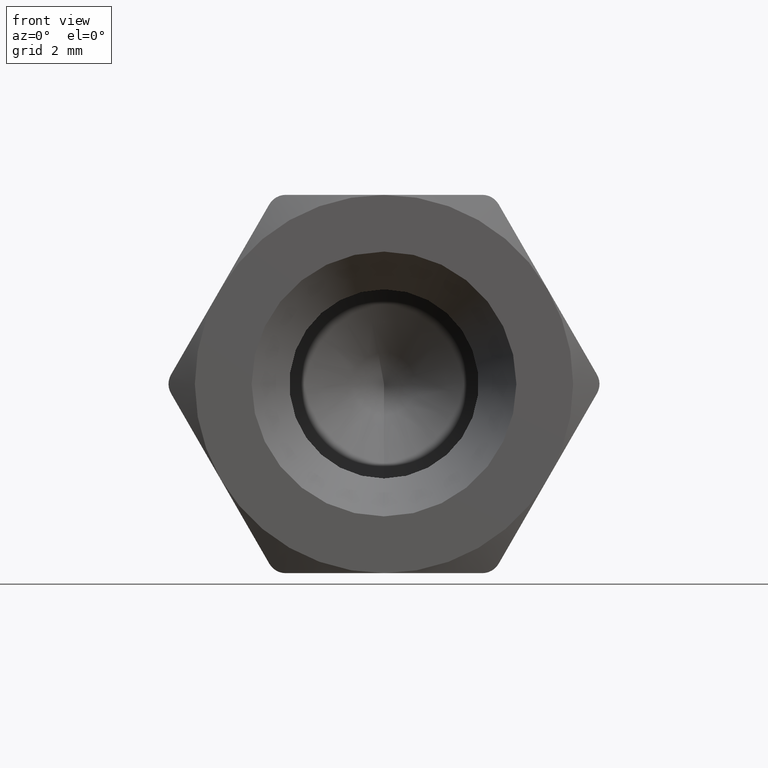
[diagram: clean part render]
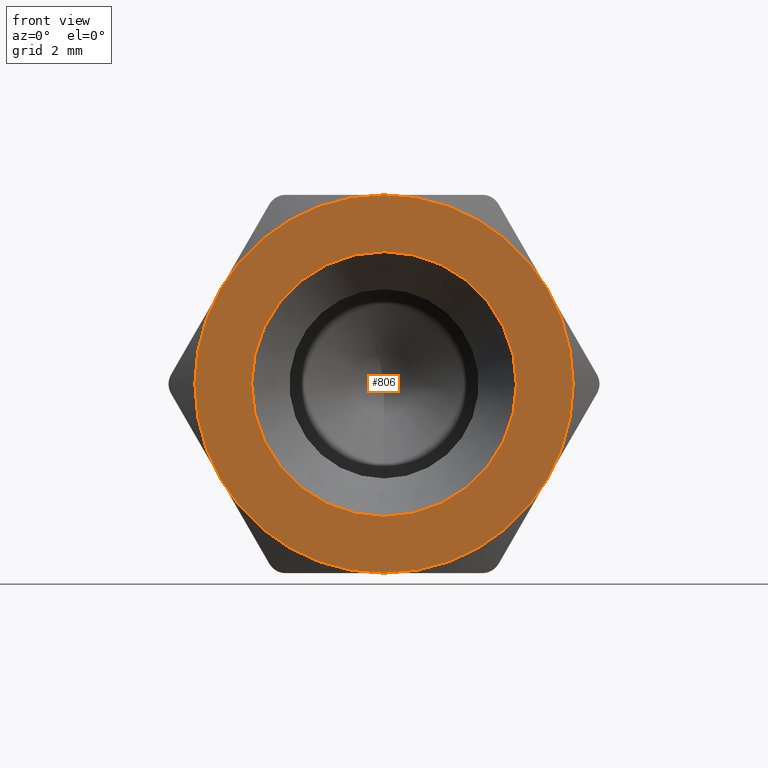
[diagram: same view with one face highlighted and labeled with its STEP entity id]
A machine part, front view. The second image highlights one B-rep face of the part: STEP entity #806.
In plain terms, the highlighted planar face has unit normal (0, 1, 0).
Its self-contained STEP definition (entity closure, byte-faithful):
#34 = ORIENTED_EDGE ( 'NONE', *, *, #979, .F. ) ;
#56 = ORIENTED_EDGE ( 'NONE', *, *, #211, .T. ) ;
#97 = CARTESIAN_POINT ( 'NONE',  ( 0.0000000000000000000, 0.0000000000000000000, 0.0000000000000000000 ) ) ;
#100 = EDGE_CURVE ( 'NONE', #544, #345, #1206, .T. ) ;
#103 = CARTESIAN_POINT ( 'NONE',  ( 0.0000000000000000000, 0.0000000000000000000, 0.0000000000000000000 ) ) ;
#152 = CIRCLE ( 'NONE', #462, 5.000000000000000900 ) ;
#200 = CIRCLE ( 'NONE', #993, 5.000000000000000900 ) ;
#211 = EDGE_CURVE ( 'NONE', #544, #928, #212, .T. ) ;
#212 = CIRCLE ( 'NONE', #297, 5.000000000000000900 ) ;
#215 = CARTESIAN_POINT ( 'NONE',  ( 4.330127018922192800, 0.0000000000000000000, -2.500000000000002700 ) ) ;
#271 = DIRECTION ( 'NONE',  ( 0.0000000000000000000, 1.000000000000000000, 0.0000000000000000000 ) ) ;
#272 = CARTESIAN_POINT ( 'NONE',  ( 0.0000000000000000000, 0.0000000000000000000, 0.0000000000000000000 ) ) ;
#276 = CARTESIAN_POINT ( 'NONE',  ( 4.330127018922195400, 0.0000000000000000000, 2.499999999999999600 ) ) ;
#297 = AXIS2_PLACEMENT_3D ( 'NONE', #272, #1269, #1265 ) ;
#308 = DIRECTION ( 'NONE',  ( 0.0000000000000000000, 0.0000000000000000000, 1.000000000000000000 ) ) ;
#316 = CARTESIAN_POINT ( 'NONE',  ( 0.0000000000000000000, 0.0000000000000000000, -5.000000000000000900 ) ) ;
#319 = DIRECTION ( 'NONE',  ( 0.0000000000000000000, 1.000000000000000000, 0.0000000000000000000 ) ) ;
#345 = VERTEX_POINT ( 'NONE', #371 ) ;
#367 = AXIS2_PLACEMENT_3D ( 'NONE', #97, #987, #572 ) ;
#371 = CARTESIAN_POINT ( 'NONE',  ( -4.330127018922195400, 0.0000000000000000000, -2.500000000000000000 ) ) ;
#392 = ORIENTED_EDGE ( 'NONE', *, *, #1106, .F. ) ;
#395 = DIRECTION ( 'NONE',  ( 0.0000000000000000000, 0.0000000000000000000, 1.000000000000000000 ) ) ;
#398 = FACE_OUTER_BOUND ( 'NONE', #1113, .T. ) ;
#420 = DIRECTION ( 'NONE',  ( 0.0000000000000000000, 1.000000000000000000, 0.0000000000000000000 ) ) ;
#424 = VERTEX_POINT ( 'NONE', #685 ) ;
#434 = AXIS2_PLACEMENT_3D ( 'NONE', #1128, #319, #1049 ) ;
#447 = VERTEX_POINT ( 'NONE', #585 ) ;
#450 = FACE_BOUND ( 'NONE', #1143, .T. ) ;
#458 = ORIENTED_EDGE ( 'NONE', *, *, #100, .F. ) ;
#462 = AXIS2_PLACEMENT_3D ( 'NONE', #103, #782, #395 ) ;
#475 = ORIENTED_EDGE ( 'NONE', *, *, #920, .F. ) ;
#530 = ORIENTED_EDGE ( 'NONE', *, *, #748, .F. ) ;
#540 = DIRECTION ( 'NONE',  ( 0.0000000000000000000, 0.0000000000000000000, 1.000000000000000000 ) ) ;
#544 = VERTEX_POINT ( 'NONE', #316 ) ;
#546 = DIRECTION ( 'NONE',  ( 0.0000000000000000000, 1.000000000000000000, 0.0000000000000000000 ) ) ;
#572 = DIRECTION ( 'NONE',  ( 0.0000000000000000000, 0.0000000000000000000, 1.000000000000000000 ) ) ;
#585 = CARTESIAN_POINT ( 'NONE',  ( 0.0000000000000000000, 0.0000000000000000000, 5.000000000000000900 ) ) ;
#600 = DIRECTION ( 'NONE',  ( 0.0000000000000000000, 0.0000000000000000000, 1.000000000000000000 ) ) ;
#603 = AXIS2_PLACEMENT_3D ( 'NONE', #809, #1193, #308 ) ;
#619 = EDGE_CURVE ( 'NONE', #1165, #1165, #973, .T. ) ;
#685 = CARTESIAN_POINT ( 'NONE',  ( -4.330127018922194500, 0.0000000000000000000, 2.500000000000000000 ) ) ;
#706 = CIRCLE ( 'NONE', #367, 5.000000000000000900 ) ;
#748 = EDGE_CURVE ( 'NONE', #447, #1023, #706, .T. ) ;
#782 = DIRECTION ( 'NONE',  ( 0.0000000000000000000, 1.000000000000000000, 0.0000000000000000000 ) ) ;
#797 = ORIENTED_EDGE ( 'NONE', *, *, #619, .T. ) ;
#806 = ADVANCED_FACE ( 'NONE', ( #450, #398 ), #1278, .F. ) ;
#809 = CARTESIAN_POINT ( 'NONE',  ( 0.0000000000000000000, 0.0000000000000000000, 0.0000000000000000000 ) ) ;
#864 = CARTESIAN_POINT ( 'NONE',  ( 0.0000000000000000000, 0.0000000000000000000, 0.0000000000000000000 ) ) ;
#897 = CIRCLE ( 'NONE', #434, 5.000000000000000900 ) ;
#920 = EDGE_CURVE ( 'NONE', #1023, #928, #897, .T. ) ;
#928 = VERTEX_POINT ( 'NONE', #215 ) ;
#948 = CARTESIAN_POINT ( 'NONE',  ( 0.0000000000000000000, 0.0000000000000000000, 0.0000000000000000000 ) ) ;
#967 = DIRECTION ( 'NONE',  ( 0.0000000000000000000, -0.0000000000000000000, 1.000000000000000000 ) ) ;
#971 = CARTESIAN_POINT ( 'NONE',  ( 0.0000000000000000000, 0.0000000000000000000, 3.500000000000004900 ) ) ;
#973 = CIRCLE ( 'NONE', #603, 3.500000000000004900 ) ;
#979 = EDGE_CURVE ( 'NONE', #424, #447, #152, .T. ) ;
#987 = DIRECTION ( 'NONE',  ( 0.0000000000000000000, 1.000000000000000000, 0.0000000000000000000 ) ) ;
#993 = AXIS2_PLACEMENT_3D ( 'NONE', #1220, #420, #600 ) ;
#1014 = AXIS2_PLACEMENT_3D ( 'NONE', #948, #546, #540 ) ;
#1023 = VERTEX_POINT ( 'NONE', #276 ) ;
#1049 = DIRECTION ( 'NONE',  ( 0.0000000000000000000, 0.0000000000000000000, 1.000000000000000000 ) ) ;
#1106 = EDGE_CURVE ( 'NONE', #345, #424, #200, .T. ) ;
#1113 = EDGE_LOOP ( 'NONE', ( #530, #34, #392, #458, #56, #475 ) ) ;
#1128 = CARTESIAN_POINT ( 'NONE',  ( 0.0000000000000000000, 0.0000000000000000000, 0.0000000000000000000 ) ) ;
#1143 = EDGE_LOOP ( 'NONE', ( #797 ) ) ;
#1165 = VERTEX_POINT ( 'NONE', #971 ) ;
#1170 = AXIS2_PLACEMENT_3D ( 'NONE', #864, #271, #967 ) ;
#1193 = DIRECTION ( 'NONE',  ( 0.0000000000000000000, 1.000000000000000000, 0.0000000000000000000 ) ) ;
#1206 = CIRCLE ( 'NONE', #1014, 5.000000000000000900 ) ;
#1220 = CARTESIAN_POINT ( 'NONE',  ( 0.0000000000000000000, 0.0000000000000000000, 0.0000000000000000000 ) ) ;
#1265 = DIRECTION ( 'NONE',  ( 0.0000000000000000000, 0.0000000000000000000, -1.000000000000000000 ) ) ;
#1269 = DIRECTION ( 'NONE',  ( 0.0000000000000000000, -1.000000000000000000, 0.0000000000000000000 ) ) ;
#1278 = PLANE ( 'NONE',  #1170 ) ;